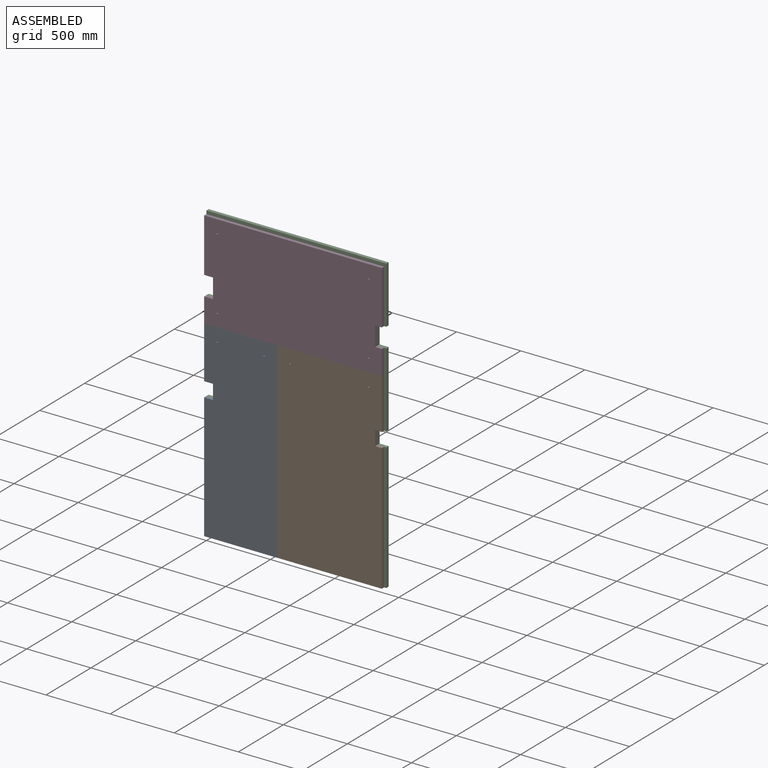
[diagram: assembled view]
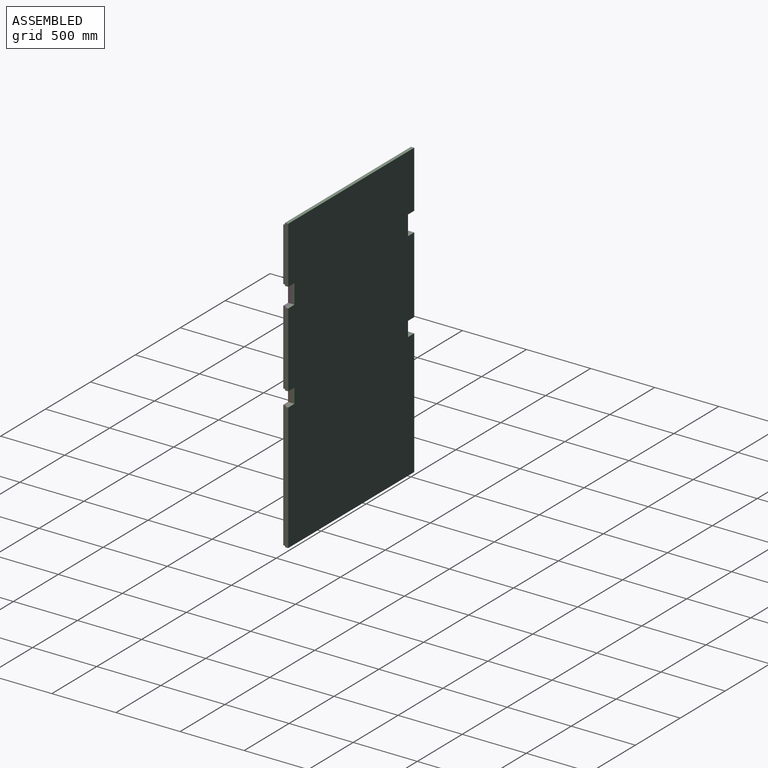
[diagram: assembled view, second angle]
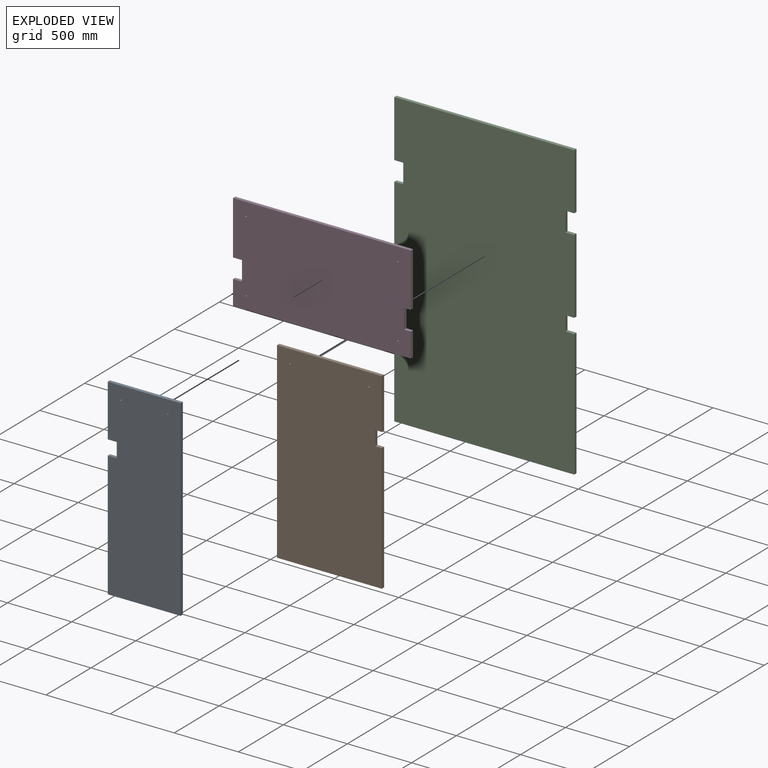
[diagram: exploded view]
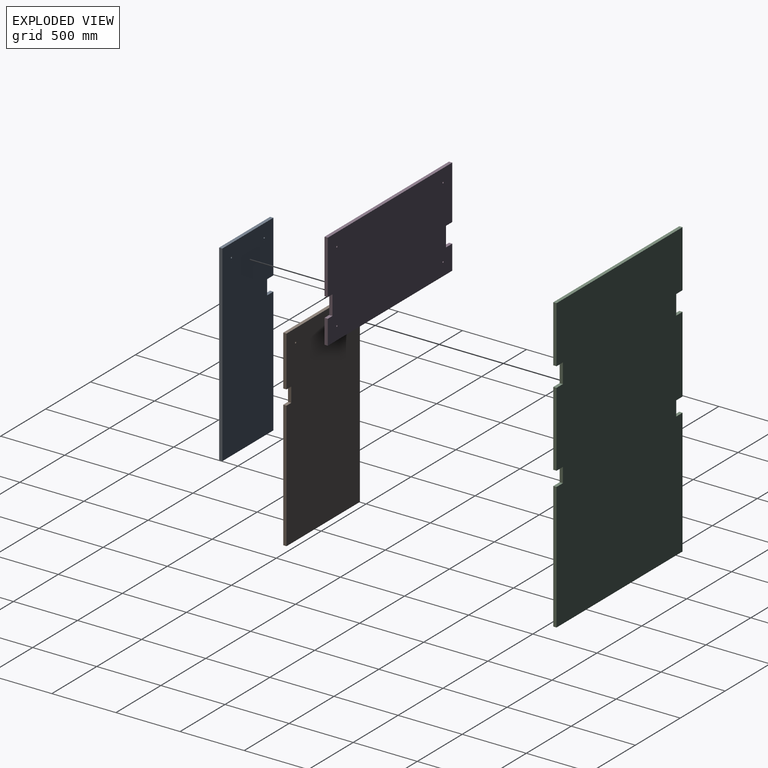
[diagram: exploded view, second angle]
ASSEMBLY  parts=4 mates=3
PART A: 12 faces, bbox 568.3x25.4x1498.6 mm
  f0: plane 977.9x25.4mm, normal (-1,0,0), area 24838.7mm2, adj f1,f9,f10,f11
  f1: plane 568.33x25.4mm, normal (0,0,-1), area 14435.5mm2, adj f0,f2,f10,f11
  f2: plane 1498.6x25.4mm, normal (1,0,0), area 38064.4mm2, adj f1,f3,f10,f11
  f3: plane 568.33x25.4mm, normal (0,0,1), area 14435.5mm2, adj f2,f4,f10,f11
  f4: plane 406.4x25.4mm, normal (-1,0,0), area 10322.6mm2, adj f3,f5,f10,f11
  f5: plane 69.85x25.4mm, normal (0,0,-1), area 1774.2mm2, adj f4,f6,f10,f11
  f6: plane 114.3x25.4mm, normal (-1,0,0), area 2903.2mm2, adj f5,f9,f10,f11
  f7: cylinder r=6.35mm len=25.4mm, axis (0,1,0), area 1013.4mm2, adj f10,f11
  f8: cylinder r=6.35mm len=25.4mm, axis (0,1,0), area 1013.4mm2, adj f10,f11
  f9: plane 69.85x25.4mm, normal (0,0,1), area 1774.2mm2, adj f0,f6,f10,f11
  f10: plane 1498.6x568.33mm, normal (0,-1,0), area 843454.6mm2, adj f0,f1,f2,f3,f4,f5,f6,f7
  f11: plane 1498.6x568.33mm, normal (0,1,0), area 843454.6mm2, adj f0,f1,f2,f3,f4,f5,f6,f7
PART B: 12 faces, bbox 817.6x25.4x1498.6 mm
  f0: plane 1498.6x25.4mm, normal (-1,0,0), area 38064.4mm2, adj f1,f9,f10,f11
  f1: plane 817.56x25.4mm, normal (0,0,-1), area 20766.1mm2, adj f0,f2,f10,f11
  f2: plane 990.6x25.4mm, normal (1,0,0), area 25161.2mm2, adj f1,f3,f10,f11
  f3: plane 52.39x25.4mm, normal (0,0,1), area 1330.6mm2, adj f2,f4,f10,f11
  f4: plane 114.3x25.4mm, normal (1,0,0), area 2903.2mm2, adj f3,f5,f10,f11
  f5: plane 52.39x25.4mm, normal (0,0,-1), area 1330.6mm2, adj f4,f6,f10,f11
  f6: plane 393.7x25.4mm, normal (1,0,0), area 10000mm2, adj f5,f9,f10,f11
  f7: cylinder r=6.35mm len=25.4mm, axis (0,1,0), area 1013.4mm2, adj f10,f11
  f8: cylinder r=6.35mm len=25.4mm, axis (0,1,0), area 1013.4mm2, adj f10,f11
  f9: plane 817.56x25.4mm, normal (0,0,1), area 20766.1mm2, adj f0,f6,f10,f11
  f10: plane 1498.6x817.56mm, normal (0,-1,0), area 1218957.9mm2, adj f0,f1,f2,f3,f4,f5,f6,f7
  f11: plane 1498.6x817.56mm, normal (0,1,0), area 1218957.9mm2, adj f0,f1,f2,f3,f4,f5,f6,f7
PART C: 22 faces, bbox 1403.4x25.4x2286 mm
  f0: plane 977.9x25.4mm, normal (-1,0,0), area 24838.7mm2, adj f1,f19,f20,f21
  f1: plane 1403.35x25.4mm, normal (0,0,-1), area 35645.1mm2, adj f0,f2,f20,f21
  f2: plane 990.6x25.4mm, normal (1,0,0), area 25161.2mm2, adj f1,f3,f20,f21
  f3: plane 69.85x25.4mm, normal (0,0,1), area 1774.2mm2, adj f2,f4,f20,f21
  f4: plane 114.3x25.4mm, normal (1,0,0), area 2903.2mm2, adj f3,f5,f20,f21
  f5: plane 69.85x25.4mm, normal (0,0,-1), area 1774.2mm2, adj f4,f6,f20,f21
  f6: plane 584.2x25.4mm, normal (1,0,0), area 14838.7mm2, adj f5,f7,f20,f21
  f7: plane 69.85x25.4mm, normal (0,0,1), area 1774.2mm2, adj f6,f8,f20,f21
  f8: plane 152.4x25.4mm, normal (1,0,0), area 3871mm2, adj f7,f9,f20,f21
  f9: plane 69.85x25.4mm, normal (0,0,-1), area 1774.2mm2, adj f8,f10,f20,f21
  f10: plane 444.5x25.4mm, normal (1,0,0), area 11290.3mm2, adj f9,f11,f20,f21
  f11: plane 1403.35x25.4mm, normal (0,0,1), area 35645.1mm2, adj f10,f12,f20,f21
  f12: plane 444.5x25.4mm, normal (-1,0,0), area 11290.3mm2, adj f11,f13,f20,f21
  f13: plane 69.85x25.4mm, normal (0,0,-1), area 1774.2mm2, adj f12,f14,f20,f21
  f14: plane 152.4x25.4mm, normal (-1,0,0), area 3871mm2, adj f13,f15,f20,f21
  f15: plane 69.85x25.4mm, normal (0,0,1), area 1774.2mm2, adj f14,f16,f20,f21
  f16: plane 596.9x25.4mm, normal (-1,0,0), area 15161.3mm2, adj f15,f17,f20,f21
  f17: plane 69.85x25.4mm, normal (0,0,-1), area 1774.2mm2, adj f16,f18,f20,f21
  f18: plane 114.3x25.4mm, normal (-1,0,0), area 2903.2mm2, adj f17,f19,f20,f21
  f19: plane 69.85x25.4mm, normal (0,0,1), area 1774.2mm2, adj f0,f18,f20,f21
  f20: plane 2286x1403.35mm, normal (0,1,0), area 3170800.1mm2, adj f0,f1,f2,f3,f4,f5,f6,f7
  f21: plane 2286x1403.35mm, normal (0,-1,0), area 3170800.1mm2, adj f0,f1,f2,f3,f4,f5,f6,f7
PART D: 18 faces, bbox 1385.9x25.4x762 mm
  f0: plane 190.5x25.4mm, normal (-1,0,0), area 4838.7mm2, adj f1,f15,f16,f17
  f1: plane 1385.9x25.4mm, normal (0,0,-1), area 35201.9mm2, adj f0,f2,f16,f17
  f2: plane 190.5x25.4mm, normal (1,0,0), area 4838.7mm2, adj f1,f3,f16,f17
  f3: plane 52.4x25.4mm, normal (0,0,1), area 1331mm2, adj f2,f4,f16,f17
  f4: plane 152.4x25.4mm, normal (1,0,0), area 3871mm2, adj f3,f5,f16,f17
  f5: plane 52.4x25.4mm, normal (0,0,-1), area 1331mm2, adj f4,f6,f16,f17
  f6: plane 419.1x25.4mm, normal (1,0,0), area 10645.1mm2, adj f5,f7,f16,f17
  f7: plane 1385.9x25.4mm, normal (0,0,1), area 35201.9mm2, adj f6,f8,f16,f17
  f8: plane 419.1x25.4mm, normal (-1,0,0), area 10645.1mm2, adj f7,f9,f16,f17
  f9: plane 69.85x25.4mm, normal (0,0,-1), area 1774.2mm2, adj f8,f10,f16,f17
  f10: plane 152.4x25.4mm, normal (-1,0,0), area 3871mm2, adj f9,f15,f16,f17
  f11: cylinder r=6.35mm len=25.4mm, axis (0,1,0), area 1013.4mm2, adj f16,f17
  f12: cylinder r=6.35mm len=25.4mm, axis (0,1,0), area 1013.4mm2, adj f16,f17
  f13: cylinder r=6.35mm len=25.4mm, axis (0,1,0), area 1013.4mm2, adj f16,f17
  f14: cylinder r=6.35mm len=25.4mm, axis (0,1,0), area 1013.4mm2, adj f16,f17
  f15: plane 69.85x25.4mm, normal (0,0,1), area 1774.2mm2, adj f0,f10,f16,f17
  f16: plane 1385.9x762mm, normal (0,-1,0), area 1036918.3mm2, adj f0,f1,f2,f3,f4,f5,f6,f7
  f17: plane 1385.9x762mm, normal (0,1,0), area 1036918.3mm2, adj f0,f1,f2,f3,f4,f5,f6,f7
PLACE A at identity
PLACE B t=(568.33,0,0)mm
PLACE C at identity fixed
PLACE D t=(0,0,1498.6)mm
MATE fastened B.f10 <-> A.f10  axis (0,-1,0) through (568.33,-25.4,0)mm
MATE fastened A.f4 <-> D.f0  axis (-1,0,0) through (0,0,1498.6)mm
MATE fastened C.f21 <-> A.f11  axis (0,-1,0) through (0,0,0)mm
